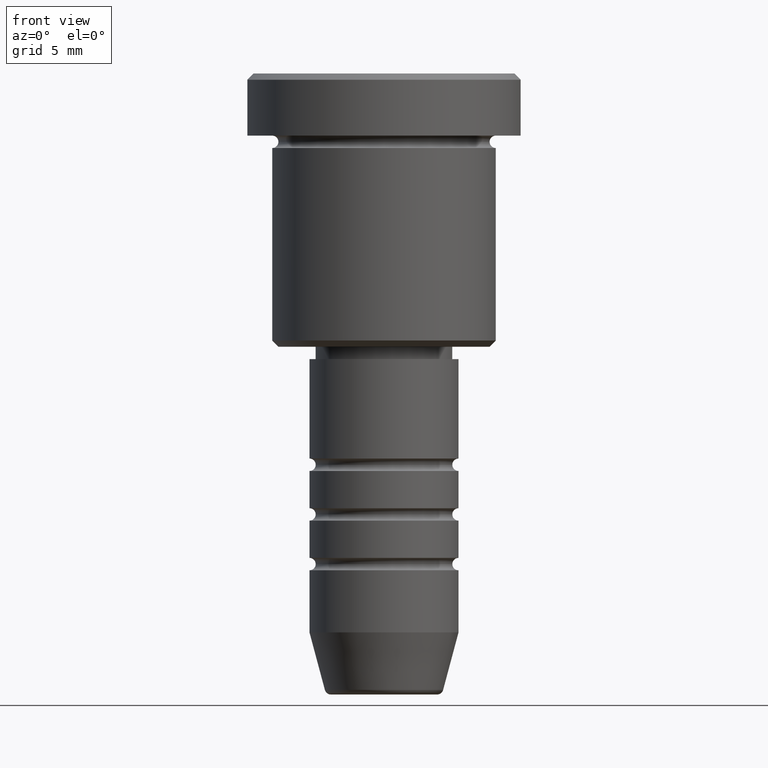
[diagram: clean part render]
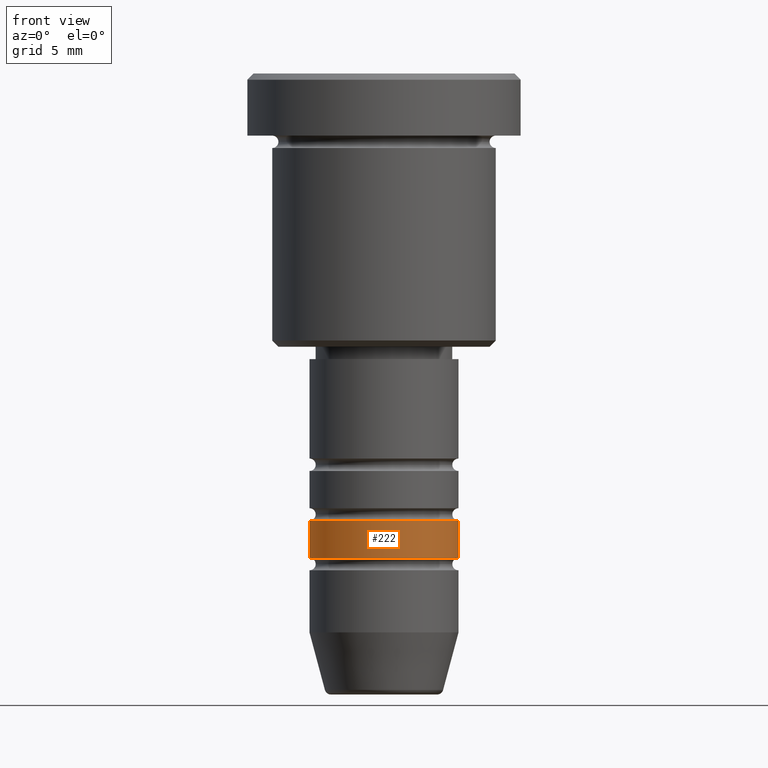
[diagram: same view with one face highlighted and labeled with its STEP entity id]
A machine part, front view. The second image highlights one B-rep face of the part: STEP entity #222.
In plain terms, the highlighted cylindrical surface (partial cylindrical patch) has radius 6 mm, axis along (-0, -0, 1).
Its self-contained STEP definition (entity closure, byte-faithful):
#60 = DIRECTION ( 'NONE',  ( 1.000000000000000000, 0.000000000000000000, 0.000000000000000000 ) ) ;
#94 = AXIS2_PLACEMENT_3D ( 'NONE', #1094, #837, #737 ) ;
#134 = DIRECTION ( 'NONE',  ( 1.000000000000000000, 0.000000000000000000, 0.000000000000000000 ) ) ;
#155 = CARTESIAN_POINT ( 'NONE',  ( 5.999999999999999112, 0.000000000000000000, -36.00000000000000000 ) ) ;
#158 = EDGE_CURVE ( 'NONE', #382, #714, #690, .T. ) ;
#195 = ORIENTED_EDGE ( 'NONE', *, *, #623, .F. ) ;
#222 = ADVANCED_FACE ( 'NONE', ( #689 ), #1062, .T. ) ;
#248 = CARTESIAN_POINT ( 'NONE',  ( 0.000000000000000000, 0.000000000000000000, 0.000000000000000000 ) ) ;
#354 = CIRCLE ( 'NONE', #94, 5.999999999999999112 ) ;
#363 = ORIENTED_EDGE ( 'NONE', *, *, #1088, .T. ) ;
#382 = VERTEX_POINT ( 'NONE', #704 ) ;
#424 = ORIENTED_EDGE ( 'NONE', *, *, #878, .F. ) ;
#440 = LINE ( 'NONE', #980, #468 ) ;
#468 = VECTOR ( 'NONE', #793, 1000.000000000000000 ) ;
#510 = CARTESIAN_POINT ( 'NONE',  ( -6.000000000000000000, 7.347880794884119736E-16, 0.000000000000000000 ) ) ;
#513 = CARTESIAN_POINT ( 'NONE',  ( 0.000000000000000000, 0.000000000000000000, -38.99999999999999289 ) ) ;
#560 = VECTOR ( 'NONE', #1151, 1000.000000000000000 ) ;
#572 = CARTESIAN_POINT ( 'NONE',  ( 6.000000000000000000, 0.000000000000000000, -38.99999999999999289 ) ) ;
#623 = EDGE_CURVE ( 'NONE', #811, #908, #354, .T. ) ;
#689 = FACE_OUTER_BOUND ( 'NONE', #1087, .T. ) ;
#690 = CIRCLE ( 'NONE', #889, 6.000000000000000000 ) ;
#704 = CARTESIAN_POINT ( 'NONE',  ( -6.000000000000000000, 7.347880794884119736E-16, -38.99999999999999289 ) ) ;
#714 = VERTEX_POINT ( 'NONE', #572 ) ;
#737 = DIRECTION ( 'NONE',  ( 1.000000000000000000, 0.000000000000000000, 0.000000000000000000 ) ) ;
#780 = LINE ( 'NONE', #510, #560 ) ;
#793 = DIRECTION ( 'NONE',  ( -0.000000000000000000, -0.000000000000000000, 1.000000000000000000 ) ) ;
#811 = VERTEX_POINT ( 'NONE', #1029 ) ;
#837 = DIRECTION ( 'NONE',  ( -0.000000000000000000, -0.000000000000000000, 1.000000000000000000 ) ) ;
#849 = DIRECTION ( 'NONE',  ( -0.000000000000000000, -0.000000000000000000, 1.000000000000000000 ) ) ;
#878 = EDGE_CURVE ( 'NONE', #382, #811, #780, .T. ) ;
#889 = AXIS2_PLACEMENT_3D ( 'NONE', #513, #1141, #60 ) ;
#908 = VERTEX_POINT ( 'NONE', #155 ) ;
#946 = ORIENTED_EDGE ( 'NONE', *, *, #158, .T. ) ;
#980 = CARTESIAN_POINT ( 'NONE',  ( 6.000000000000000000, 0.000000000000000000, 0.000000000000000000 ) ) ;
#1029 = CARTESIAN_POINT ( 'NONE',  ( -5.999999999999999112, 7.347880794884118750E-16, -36.00000000000000000 ) ) ;
#1062 = CYLINDRICAL_SURFACE ( 'NONE', #1154, 6.000000000000000000 ) ;
#1087 = EDGE_LOOP ( 'NONE', ( #424, #946, #363, #195 ) ) ;
#1088 = EDGE_CURVE ( 'NONE', #714, #908, #440, .T. ) ;
#1094 = CARTESIAN_POINT ( 'NONE',  ( 0.000000000000000000, 0.000000000000000000, -36.00000000000000000 ) ) ;
#1141 = DIRECTION ( 'NONE',  ( -0.000000000000000000, -0.000000000000000000, 1.000000000000000000 ) ) ;
#1151 = DIRECTION ( 'NONE',  ( -0.000000000000000000, -0.000000000000000000, 1.000000000000000000 ) ) ;
#1154 = AXIS2_PLACEMENT_3D ( 'NONE', #248, #849, #134 ) ;